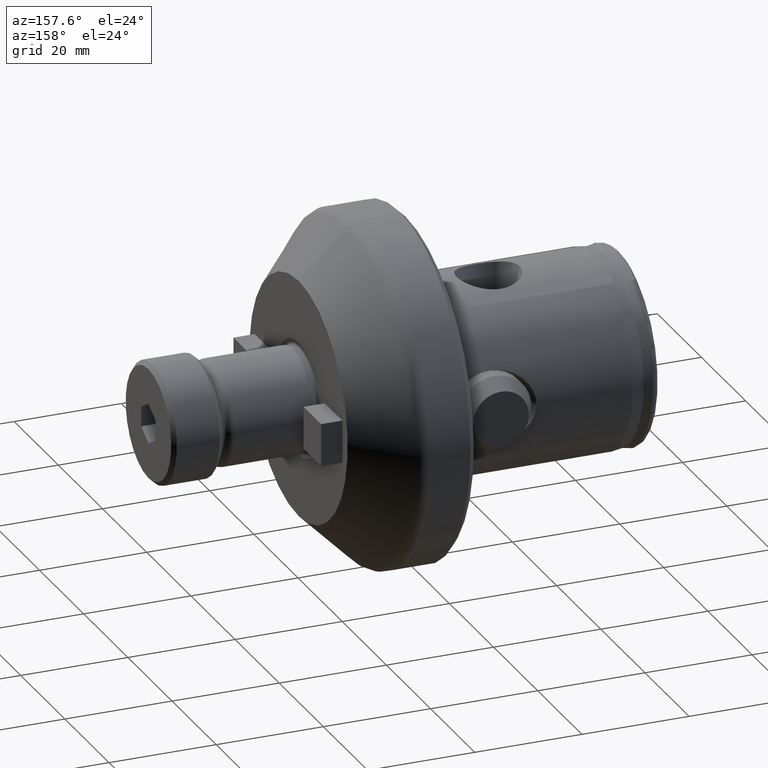
[diagram: clean part render]
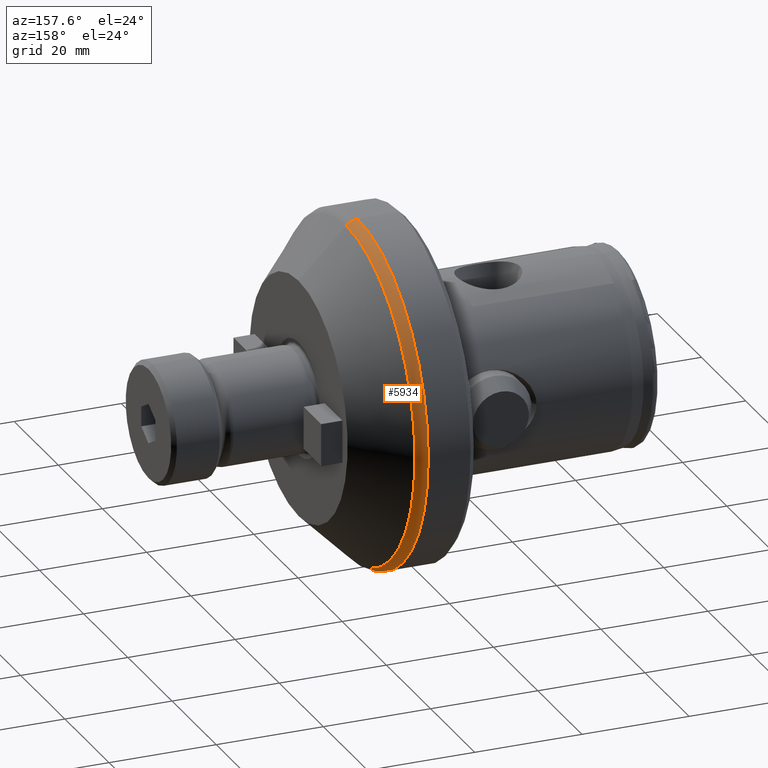
[diagram: same view with one face highlighted and labeled with its STEP entity id]
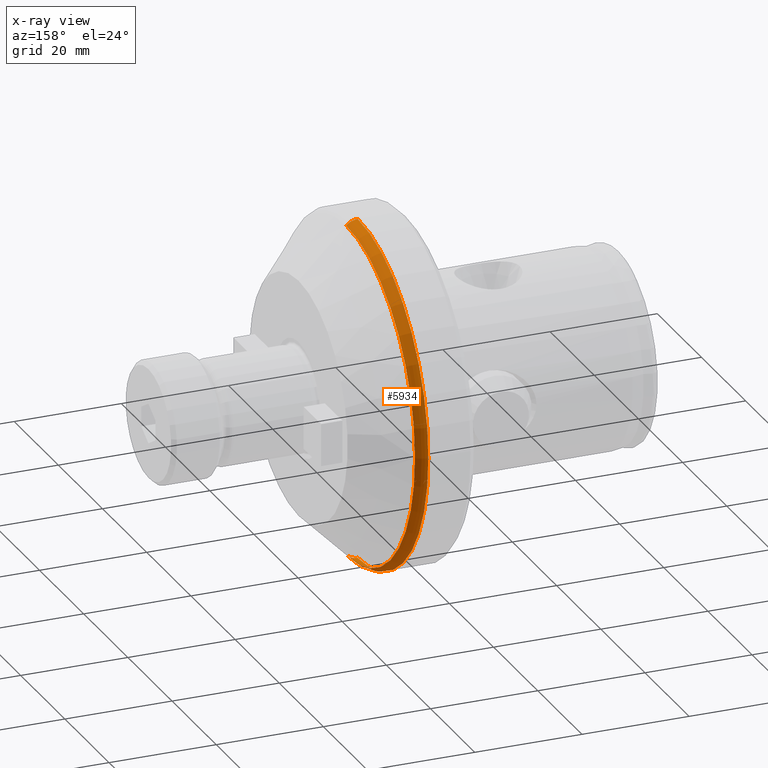
[diagram: x-ray of the same camera — body ghosted, the highlighted face saturated]
A machine part, auxiliary view. The second image highlights one B-rep face of the part: STEP entity #5934.
The next image is the same camera in x-ray: the body ghosted, the highlighted face saturated — about 0% of this face is hidden behind the body in this view.
In plain terms, the highlighted toroidal blend (fillet) surface has major radius 29 mm and minor (blend) radius 3 mm.
Its self-contained STEP definition (entity closure, byte-faithful):
#183 = EDGE_CURVE ( 'NONE', #1069, #5414, #2015, .T. ) ;
#209 = VERTEX_POINT ( 'NONE', #1339 ) ;
#269 = CARTESIAN_POINT ( 'NONE',  ( 51.01367965644033100, 0.0000000000000000000, 0.0000000000000000000 ) ) ;
#473 = ORIENTED_EDGE ( 'NONE', *, *, #183, .T. ) ;
#546 = DIRECTION ( 'NONE',  ( 0.0000000000000000000, 0.0000000000000000000, 1.000000000000000000 ) ) ;
#676 = AXIS2_PLACEMENT_3D ( 'NONE', #269, #1514, #7450 ) ;
#1028 = DIRECTION ( 'NONE',  ( 0.0000000000000000000, -1.000000000000000000, 0.0000000000000000000 ) ) ;
#1069 = VERTEX_POINT ( 'NONE', #5431 ) ;
#1339 = CARTESIAN_POINT ( 'NONE',  ( 48.89235931288067100, 0.0000000000000000000, 32.00000000000000000 ) ) ;
#1340 = AXIS2_PLACEMENT_3D ( 'NONE', #4715, #7688, #546 ) ;
#1514 = DIRECTION ( 'NONE',  ( -1.000000000000000000, -0.0000000000000000000, -0.0000000000000000000 ) ) ;
#1552 = EDGE_CURVE ( 'NONE', #209, #5414, #7178, .T. ) ;
#1755 = TOROIDAL_SURFACE ( 'NONE', #3296, 29.00000000000000000, 3.000000000000000400 ) ;
#1948 = VERTEX_POINT ( 'NONE', #5684 ) ;
#2015 = CIRCLE ( 'NONE', #5391, 2.999999999999999100 ) ;
#2291 = CARTESIAN_POINT ( 'NONE',  ( 48.89235931288068600, 0.0000000000000000000, 29.00000000000000000 ) ) ;
#2642 = EDGE_CURVE ( 'NONE', #1948, #209, #6708, .T. ) ;
#2646 = EDGE_LOOP ( 'NONE', ( #6508, #473, #3815, #5705 ) ) ;
#2714 = CIRCLE ( 'NONE', #676, 31.12132034355963800 ) ;
#2767 = DIRECTION ( 'NONE',  ( -1.000000000000000000, -0.0000000000000000000, -0.0000000000000000000 ) ) ;
#3296 = AXIS2_PLACEMENT_3D ( 'NONE', #3417, #2767, #7572 ) ;
#3417 = CARTESIAN_POINT ( 'NONE',  ( 48.89235931288068600, 0.0000000000000000000, 0.0000000000000000000 ) ) ;
#3445 = DIRECTION ( 'NONE',  ( 0.0000000000000000000, 0.0000000000000000000, -1.000000000000000000 ) ) ;
#3498 = DIRECTION ( 'NONE',  ( -0.0000000000000000000, 1.000000000000000000, 1.224646799147353200E-016 ) ) ;
#3598 = CARTESIAN_POINT ( 'NONE',  ( 48.89235931288068600, 3.551475717527324000E-015, -29.00000000000000000 ) ) ;
#3815 = ORIENTED_EDGE ( 'NONE', *, *, #1552, .F. ) ;
#4043 = EDGE_CURVE ( 'NONE', #1948, #1069, #2714, .T. ) ;
#4108 = DIRECTION ( 'NONE',  ( 0.0000000000000000000, -1.224646799147353500E-016, 1.000000000000000000 ) ) ;
#4460 = AXIS2_PLACEMENT_3D ( 'NONE', #2291, #1028, #3445 ) ;
#4715 = CARTESIAN_POINT ( 'NONE',  ( 48.89235931288067100, 0.0000000000000000000, 0.0000000000000000000 ) ) ;
#4974 = CARTESIAN_POINT ( 'NONE',  ( 48.89235931288067100, 3.918869757271530300E-015, -32.00000000000000000 ) ) ;
#5391 = AXIS2_PLACEMENT_3D ( 'NONE', #3598, #3498, #4108 ) ;
#5414 = VERTEX_POINT ( 'NONE', #4974 ) ;
#5431 = CARTESIAN_POINT ( 'NONE',  ( 51.01367965644033100, 3.811262534397972000E-015, -31.12132034355963800 ) ) ;
#5684 = CARTESIAN_POINT ( 'NONE',  ( 51.01367965644033100, 0.0000000000000000000, 31.12132034355963800 ) ) ;
#5705 = ORIENTED_EDGE ( 'NONE', *, *, #2642, .F. ) ;
#5934 = ADVANCED_FACE ( 'NONE', ( #6622 ), #1755, .T. ) ;
#6508 = ORIENTED_EDGE ( 'NONE', *, *, #4043, .T. ) ;
#6622 = FACE_OUTER_BOUND ( 'NONE', #2646, .T. ) ;
#6708 = CIRCLE ( 'NONE', #4460, 2.999999999999999100 ) ;
#7178 = CIRCLE ( 'NONE', #1340, 32.00000000000000000 ) ;
#7450 = DIRECTION ( 'NONE',  ( 0.0000000000000000000, 0.0000000000000000000, 1.000000000000000000 ) ) ;
#7572 = DIRECTION ( 'NONE',  ( 0.0000000000000000000, 0.0000000000000000000, 1.000000000000000000 ) ) ;
#7688 = DIRECTION ( 'NONE',  ( -1.000000000000000000, -0.0000000000000000000, -0.0000000000000000000 ) ) ;